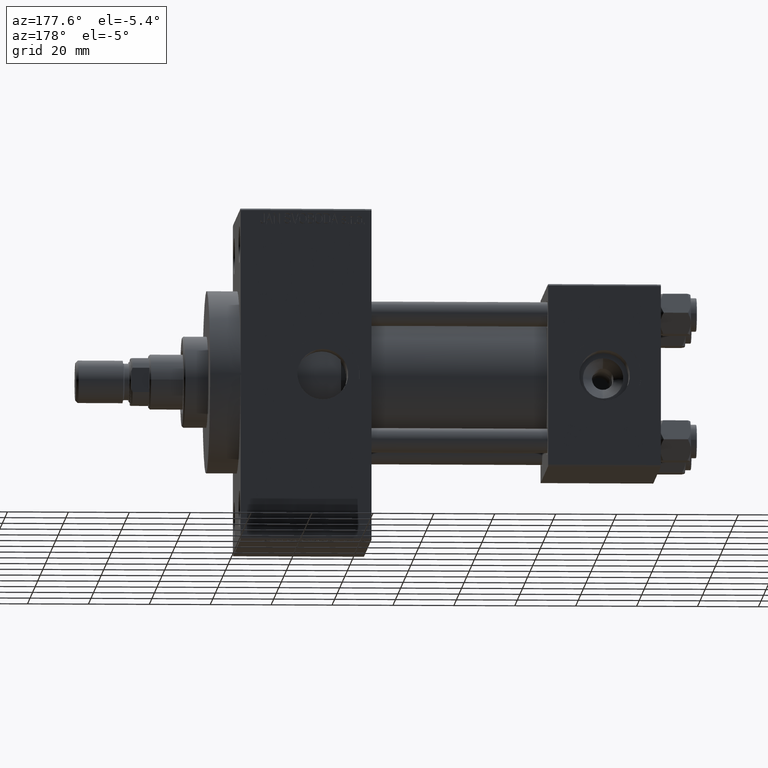
[diagram: clean part render]
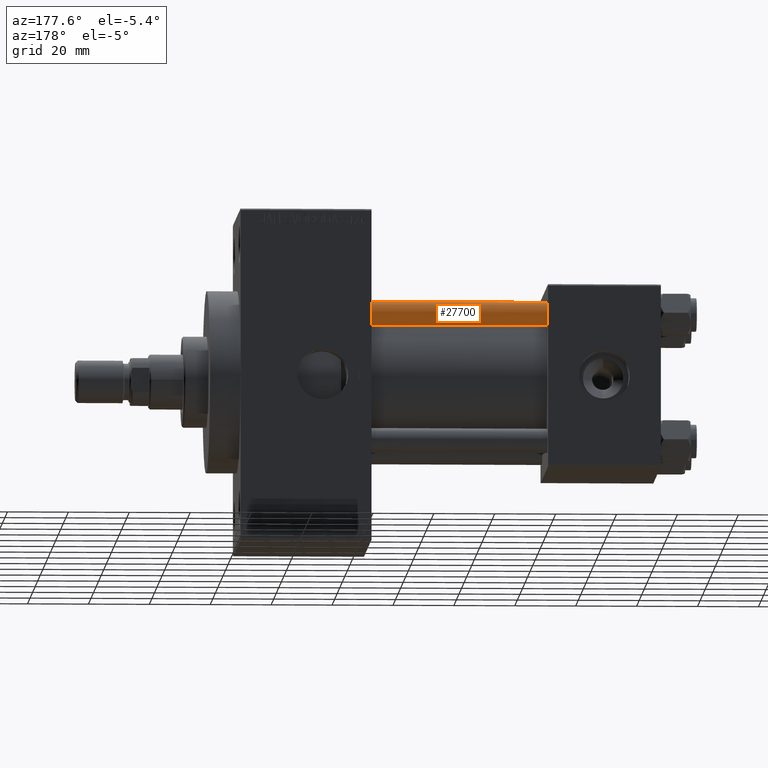
[diagram: same view with one face highlighted and labeled with its STEP entity id]
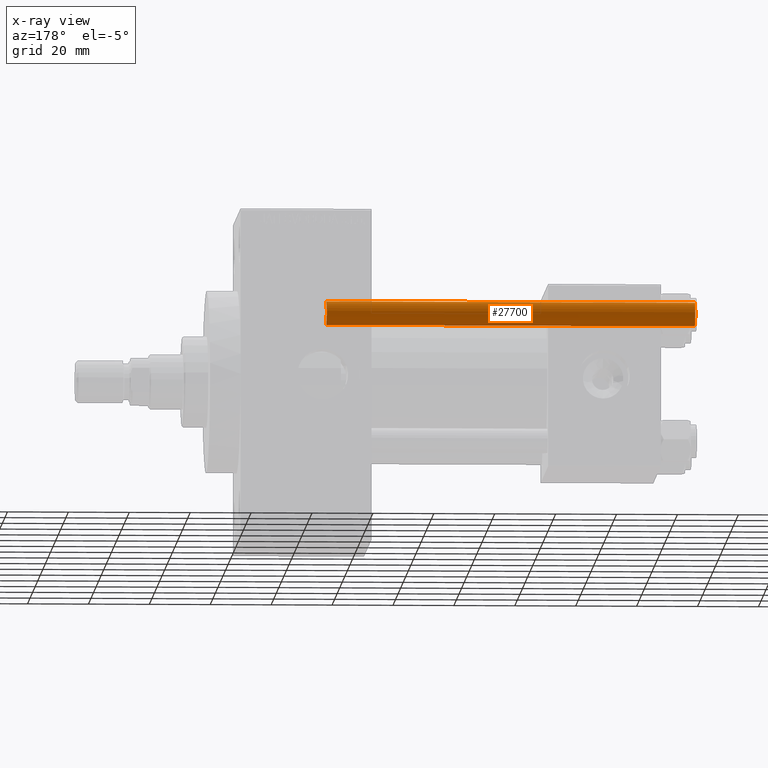
[diagram: x-ray of the same camera — body ghosted, the highlighted face saturated]
A machine part, auxiliary view. The second image highlights one B-rep face of the part: STEP entity #27700.
The next image is the same camera in x-ray: the body ghosted, the highlighted face saturated — about 0% of this face is hidden behind the body in this view.
In plain terms, the highlighted cylindrical surface (edge-blend (fillet) strip) has radius 4 mm, axis along (-1, -0, 0).
Its self-contained STEP definition (entity closure, byte-faithful):
#201 = DIRECTION ( 'NONE',  ( -0.000000000000000000, -0.000000000000000000, -1.000000000000000000 ) ) ;
#1170 = EDGE_CURVE ( 'NONE', #41794, #27679, #38414, .T. ) ;
#1565 = ORIENTED_EDGE ( 'NONE', *, *, #37073, .T. ) ;
#2034 = DIRECTION ( 'NONE',  ( -0.000000000000000000, -0.000000000000000000, -1.000000000000000000 ) ) ;
#4068 = CARTESIAN_POINT ( 'NONE',  ( -4.000000000000000000, 0.000000000000000000, 0.5000000000000559552 ) ) ;
#5239 = VECTOR ( 'NONE', #201, 1000.000000000000000 ) ;
#7447 = EDGE_LOOP ( 'NONE', ( #1565, #22837, #44273, #32857 ) ) ;
#8118 = VERTEX_POINT ( 'NONE', #41467 ) ;
#10868 = DIRECTION ( 'NONE',  ( -0.000000000000000000, -0.000000000000000000, 1.000000000000000000 ) ) ;
#12031 = LINE ( 'NONE', #19567, #5239 ) ;
#13107 = FACE_OUTER_BOUND ( 'NONE', #7447, .T. ) ;
#14360 = EDGE_CURVE ( 'NONE', #37224, #27679, #12031, .T. ) ;
#16178 = CARTESIAN_POINT ( 'NONE',  ( 0.000000000000000000, 0.000000000000000000, 121.5000000000000426 ) ) ;
#16425 = DIRECTION ( 'NONE',  ( 0.000000000000000000, 0.000000000000000000, -1.000000000000000000 ) ) ;
#17786 = LINE ( 'NONE', #47978, #32675 ) ;
#19567 = CARTESIAN_POINT ( 'NONE',  ( -4.000000000000000000, 0.000000000000000000, 122.0000000000000000 ) ) ;
#21645 = CYLINDRICAL_SURFACE ( 'NONE', #23237, 4.000000000000000000 ) ;
#22837 = ORIENTED_EDGE ( 'NONE', *, *, #47883, .T. ) ;
#23172 = CARTESIAN_POINT ( 'NONE',  ( 0.000000000000000000, 0.000000000000000000, 0.5000000000000559552 ) ) ;
#23237 = AXIS2_PLACEMENT_3D ( 'NONE', #36494, #2034, #40531 ) ;
#25728 = CARTESIAN_POINT ( 'NONE',  ( 4.000000000000000000, 4.898587196589411843E-16, 0.5000000000000559552 ) ) ;
#27166 = AXIS2_PLACEMENT_3D ( 'NONE', #23172, #10868, #30969 ) ;
#27679 = VERTEX_POINT ( 'NONE', #4068 ) ;
#27700 = ADVANCED_FACE ( 'NONE', ( #13107 ), #21645, .T. ) ;
#29984 = AXIS2_PLACEMENT_3D ( 'NONE', #16178, #16425, #44111 ) ;
#30969 = DIRECTION ( 'NONE',  ( 1.000000000000000000, 0.000000000000000000, 0.000000000000000000 ) ) ;
#31224 = CARTESIAN_POINT ( 'NONE',  ( -4.000000000000000000, 0.000000000000000000, 121.5000000000000426 ) ) ;
#32675 = VECTOR ( 'NONE', #37155, 1000.000000000000000 ) ;
#32857 = ORIENTED_EDGE ( 'NONE', *, *, #14360, .F. ) ;
#36494 = CARTESIAN_POINT ( 'NONE',  ( 0.000000000000000000, 0.000000000000000000, 122.0000000000000000 ) ) ;
#37073 = EDGE_CURVE ( 'NONE', #37224, #8118, #47650, .T. ) ;
#37155 = DIRECTION ( 'NONE',  ( -0.000000000000000000, -0.000000000000000000, -1.000000000000000000 ) ) ;
#37224 = VERTEX_POINT ( 'NONE', #31224 ) ;
#38414 = CIRCLE ( 'NONE', #27166, 4.000000000000000000 ) ;
#40531 = DIRECTION ( 'NONE',  ( -1.000000000000000000, 0.000000000000000000, 0.000000000000000000 ) ) ;
#41467 = CARTESIAN_POINT ( 'NONE',  ( 4.000000000000000000, 4.898587196589411843E-16, 121.5000000000000426 ) ) ;
#41794 = VERTEX_POINT ( 'NONE', #25728 ) ;
#44111 = DIRECTION ( 'NONE',  ( 1.000000000000000000, 0.000000000000000000, 0.000000000000000000 ) ) ;
#44273 = ORIENTED_EDGE ( 'NONE', *, *, #1170, .T. ) ;
#47650 = CIRCLE ( 'NONE', #29984, 4.000000000000000000 ) ;
#47883 = EDGE_CURVE ( 'NONE', #8118, #41794, #17786, .T. ) ;
#47978 = CARTESIAN_POINT ( 'NONE',  ( 4.000000000000000000, 4.898587196589411843E-16, 122.0000000000000000 ) ) ;